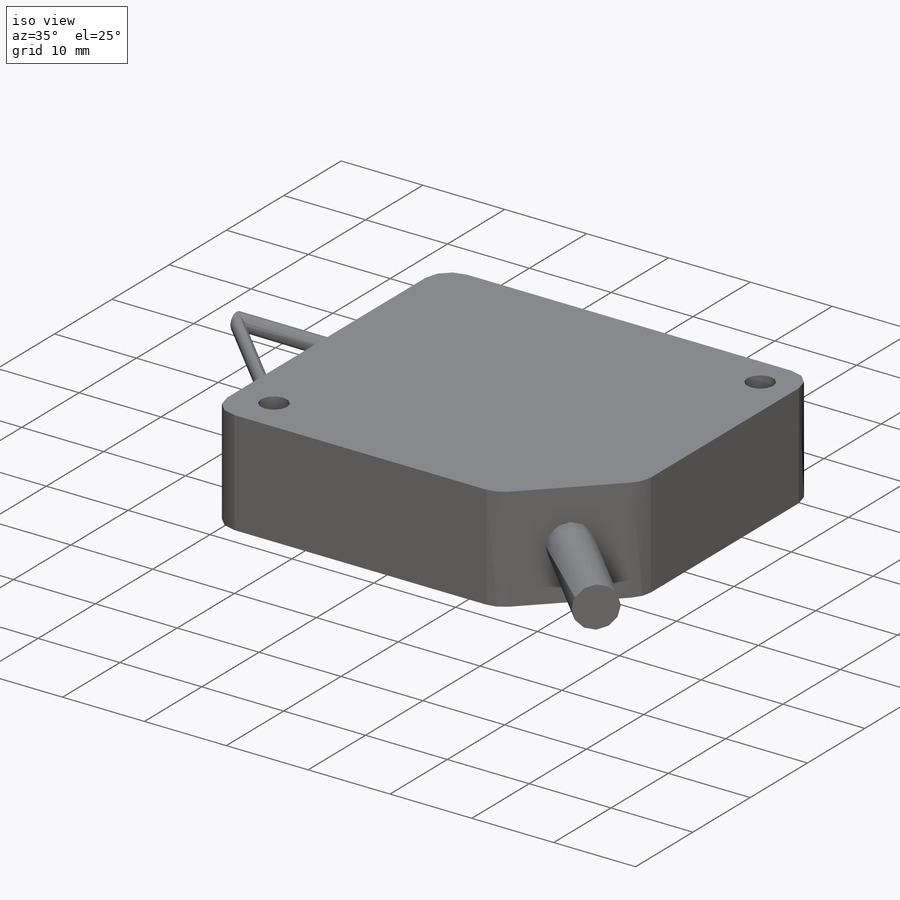
[diagram: iso view]
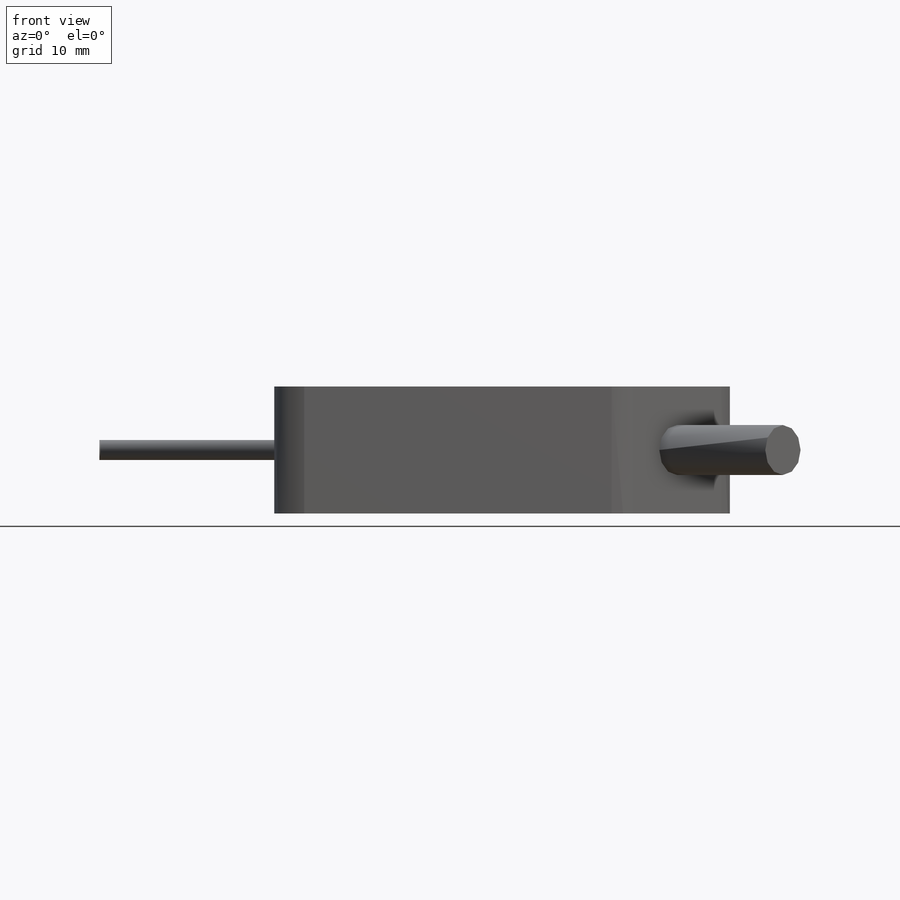
[diagram: front view]
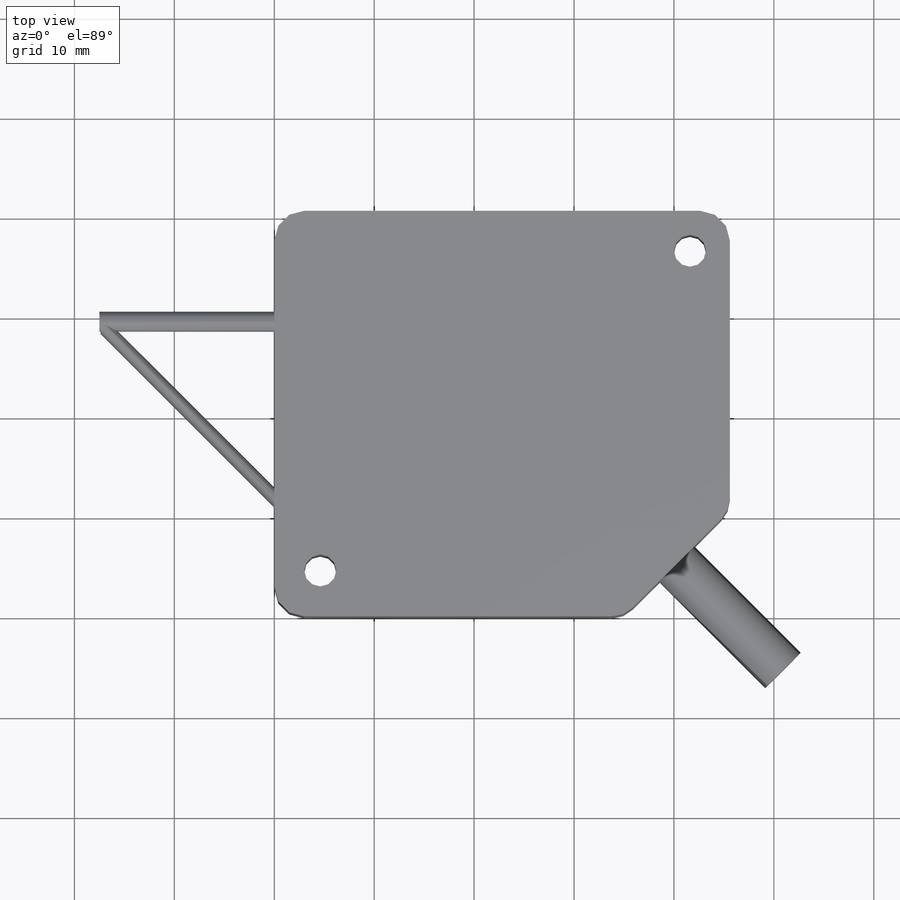
[diagram: top view]
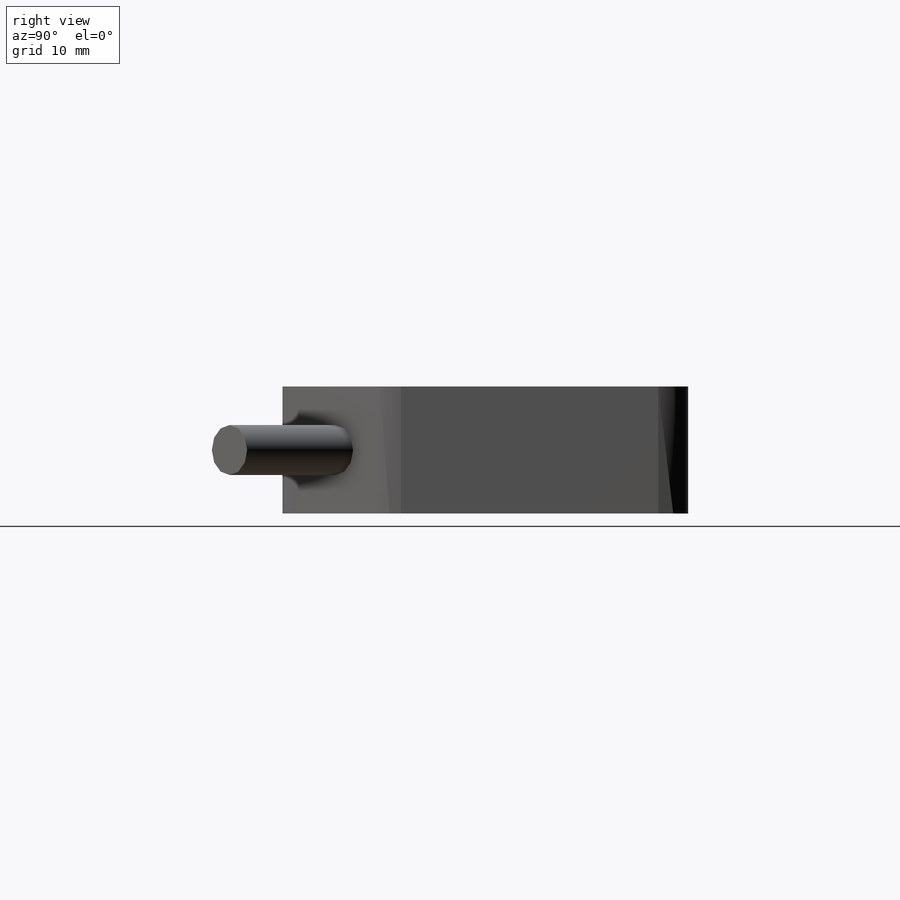
[diagram: right view]
SOLIDWORKS PART (.sldprt)
format: sldprt  version: not decoded by parser v0  size: 203,264 bytes
history: native  units: mm
features: sketch x5, extrude x4, plane x3, fillet x2, material x1, cut_extrude x1 (+9 scaffold rows collapsed)
feature tree (25):
  scaffold x9  (default folders/planes/origin — collapsed)
  material  "Material <not specified>"
  plane  "Face"
  plane  "Dessus"
  plane  "Droite"
  sketch  "Esquisse1"  dims[c1.D6=3.2mm c1.D9=3.2mm c1.D1=45.6mm c1.D2=40.6mm c1.D3=~6.068876mm c2.D3=45.0deg c2.D4=35.0mm c2.D5=7.0mm c2.D7=7.0mm c3.D5=4.0mm c3.D7=32.0mm c3.D8=4.0mm c3.D9=37.0mm]
  extrude  "Extrusion1"  Depth=12.7mm
  sketch  "Esquisse2"  dims[D1=2.0mm D2=6.0mm D3=14.3mm]
  cut_extrude  "Extrusion2"  Depth=1mm
  fillet  "Congé1"  Radius=2mm
  sketch  "Esquisse3"  dims[D1=5.0mm]
  extrude  "Extrusion3"  Depth=15mm
  fillet  "Congé2"  Radius=3mm
  sketch  "Esquisse5"  dims[D2=2.0mm D1=8.0mm]
  extrude  "Extrusion4"  Depth=18.5mm
  sketch  "Esquisse6"  dims[D2=2.0mm D1=8.0mm]
  extrude  "Extrusion5"  Depth=26mm
decode coverage: 12 of 12 modeling features carry decoded parameters
note: ~ marks probable driven/reference dimensions
note: suppression state not decoded; provenance and decode notes live in map.json
